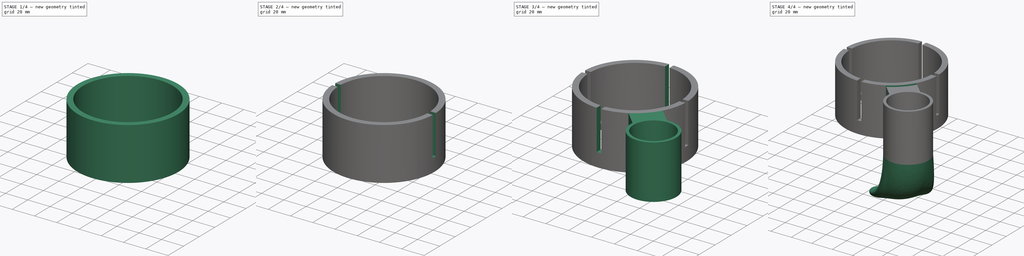
[diagram: build sequence overview — one tinted view per stage of 4, left to right]
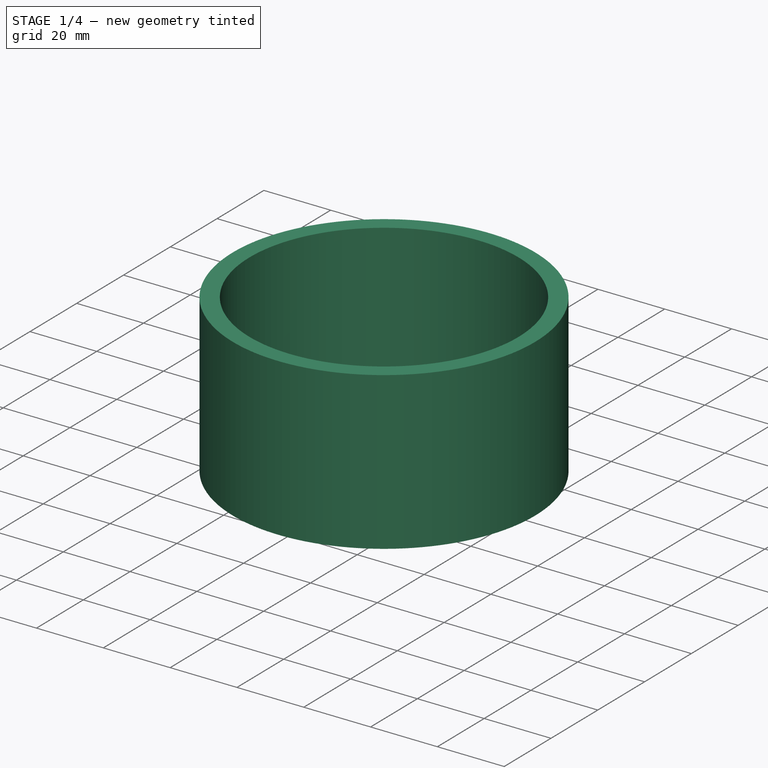
[diagram: stage 1 of 4 — iso view after this stage's code; geometry added in this stage tinted green]
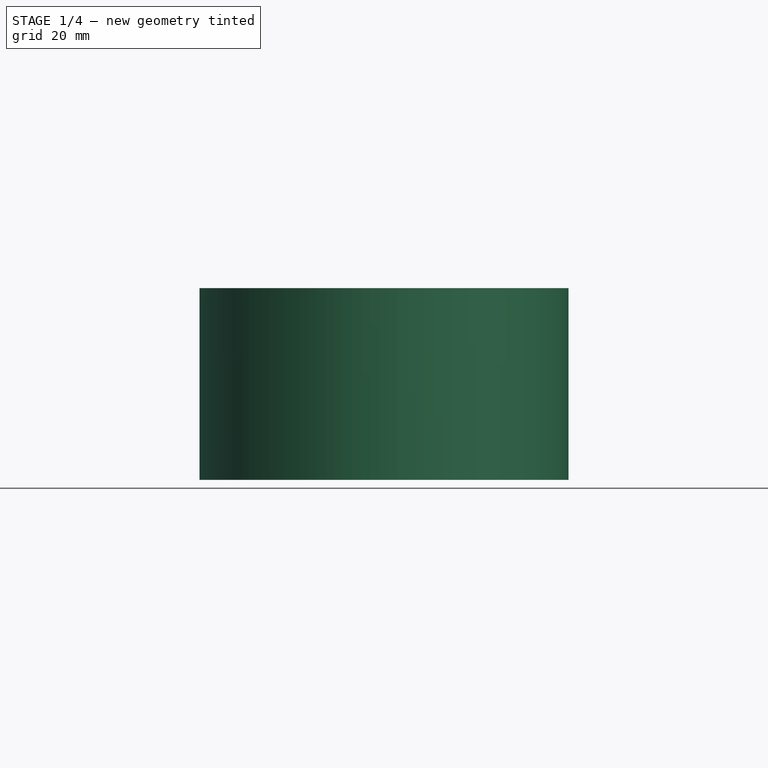
[diagram: stage 1 of 4 — front view after this stage's code; geometry added in this stage tinted green]
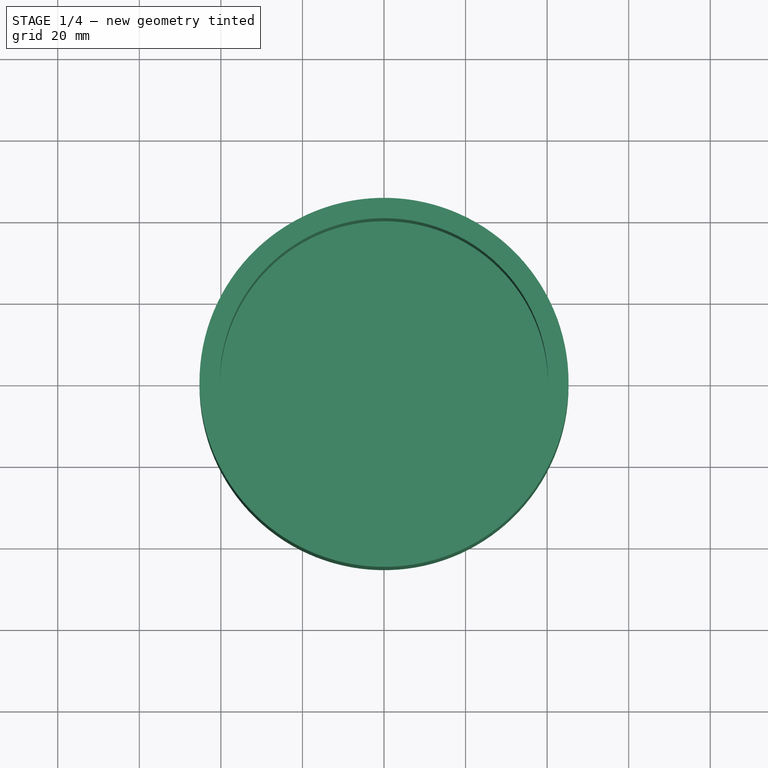
[diagram: stage 1 of 4 — top view after this stage's code; geometry added in this stage tinted green]
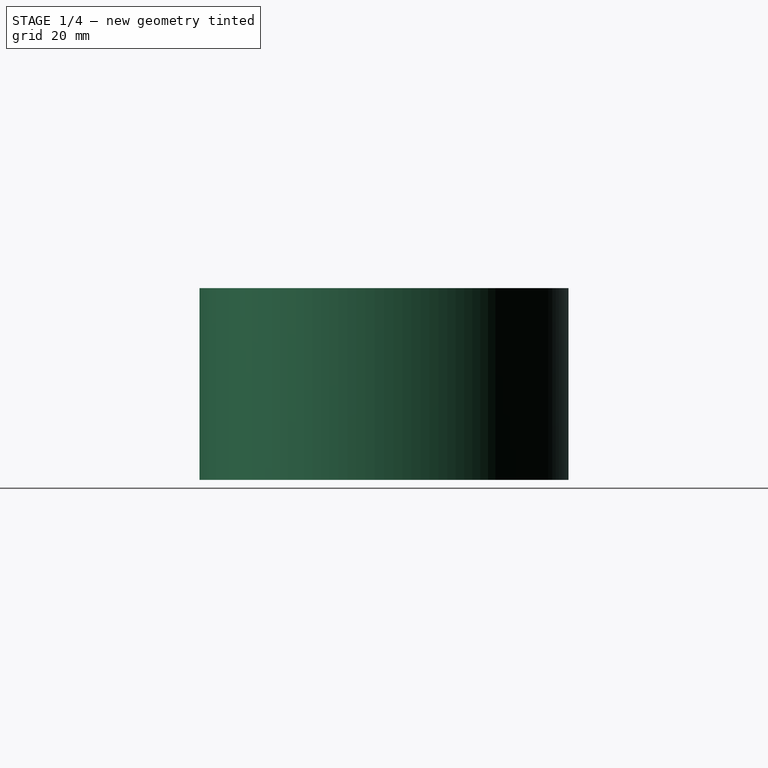
[diagram: stage 1 of 4 — right view after this stage's code; geometry added in this stage tinted green]
FCSTD DOCUMENT  (FreeCAD 0.20R29603 (Git))
Label: nozzle
License: All rights reserved
LicenseURL: http://en.wikipedia.org/wiki/All_rights_reserved
objects: Sketcher::SketchObject×12, PartDesign::Pocket×4, PartDesign::Pad×3, PartDesign::Plane×2, PartDesign::SubtractiveLoft×1, PartDesign::CoordinateSystem×1, PartDesign::Point×1, PartDesign::AdditivePipe×1, PartDesign::Body×1
note: 35 computed .brp shape members not serialized (recipe doc carries the construction recipe); baked Part::Feature solids carry a one-line shape summary decoded from their .brp

FEATURE [Sketcher::SketchObject] Sketch
  FullyConstrained = true
  MapMode = 5
  Support = -> [XY_Plane]
  sketch-geometry (2):
    g0: Circle CenterX=0 CenterY=0 CenterZ=0 NormalX=0 NormalY=0 NormalZ=1 AngleXU=0 Radius=40.25
    g1: Circle CenterX=0 CenterY=0 CenterZ=0 NormalX=0 NormalY=0 NormalZ=1 AngleXU=0 Radius=45.25
  constraints (4):
    c: Coincident(g0,g-1)
    c: Coincident(g1,g0)
    c: Diameter(g0) = 80.5
    c: Diameter(g1) = 90.5
FEATURE [PartDesign::Pad] Pad
  Direction = (0,0,1)
  Length = 42
  Length2 = 10
  Profile = -> Sketch
  ReferenceAxis = -> Sketch [N_Axis]
  Reversed = true
  Type = 0
FEATURE [Sketcher::SketchObject] Sketch001
  FullyConstrained = true
  MapMode = 5
  Placement = pos=(0,0,-42) rot=(1,0,0;3.14159rad)
  Support = -> [Pad]
  sketch-geometry (1):
    g0: Circle CenterX=0 CenterY=0 CenterZ=0 NormalX=0 NormalY=0 NormalZ=1 AngleXU=0 Radius=45.25
  constraints (2):
    c: Coincident(g0,g-1)
    c: Diameter(g0) = 90.5
FEATURE [PartDesign::Pad] Pad001
  BaseFeature = -> Pad
  Direction = (0,0,-1)
  Length = 5
  Length2 = 10
  Profile = -> Sketch001
  ReferenceAxis = -> Sketch001 [N_Axis]
  Type = 0
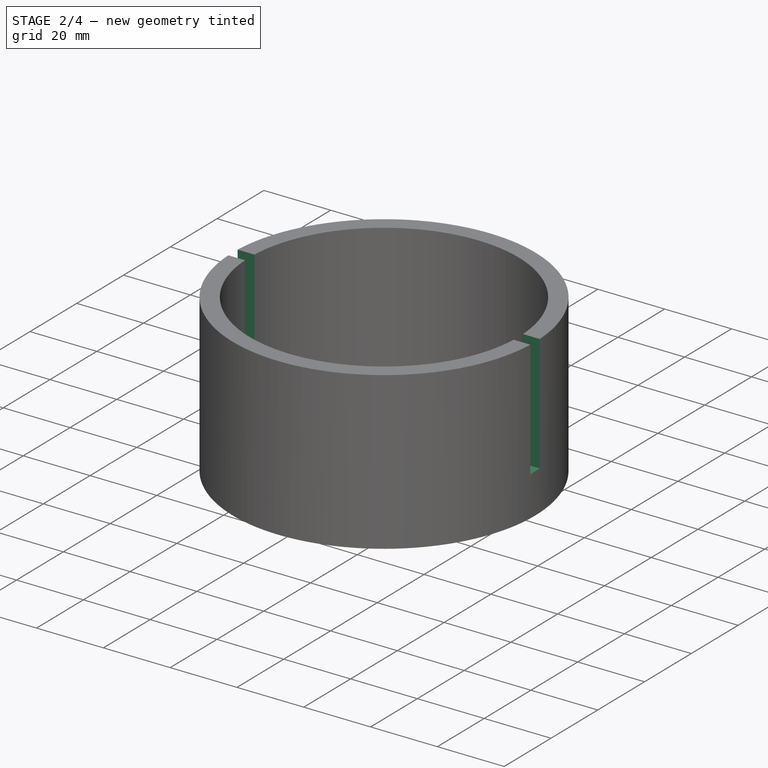
[diagram: stage 2 of 4 — iso view after this stage's code; geometry added in this stage tinted green]
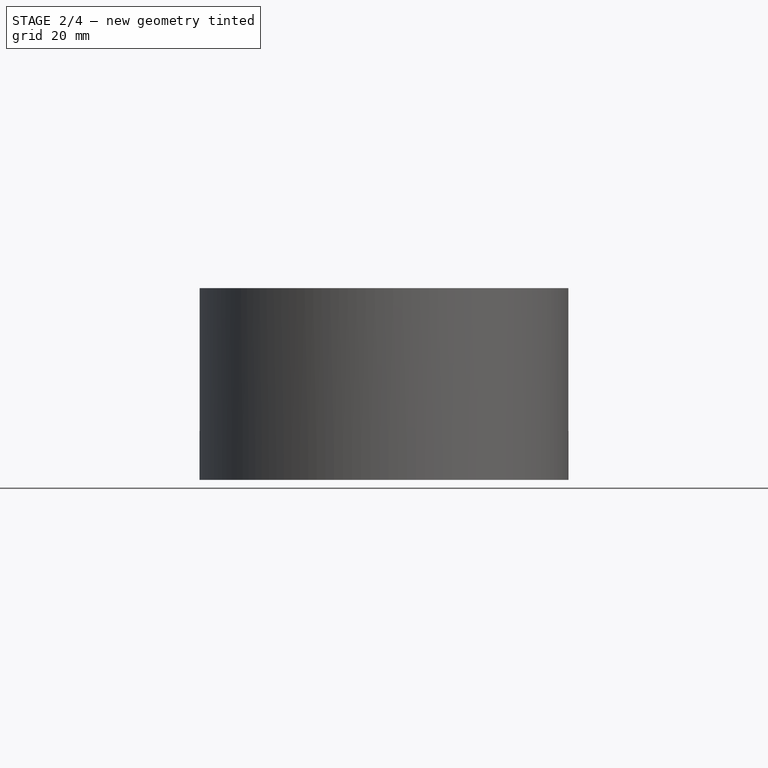
[diagram: stage 2 of 4 — front view after this stage's code; geometry added in this stage tinted green]
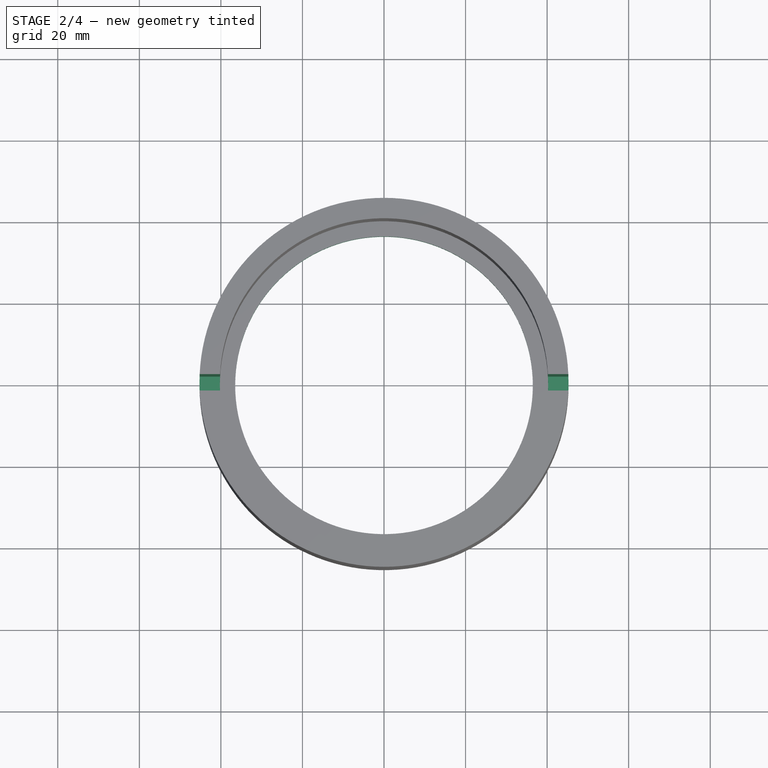
[diagram: stage 2 of 4 — top view after this stage's code; geometry added in this stage tinted green]
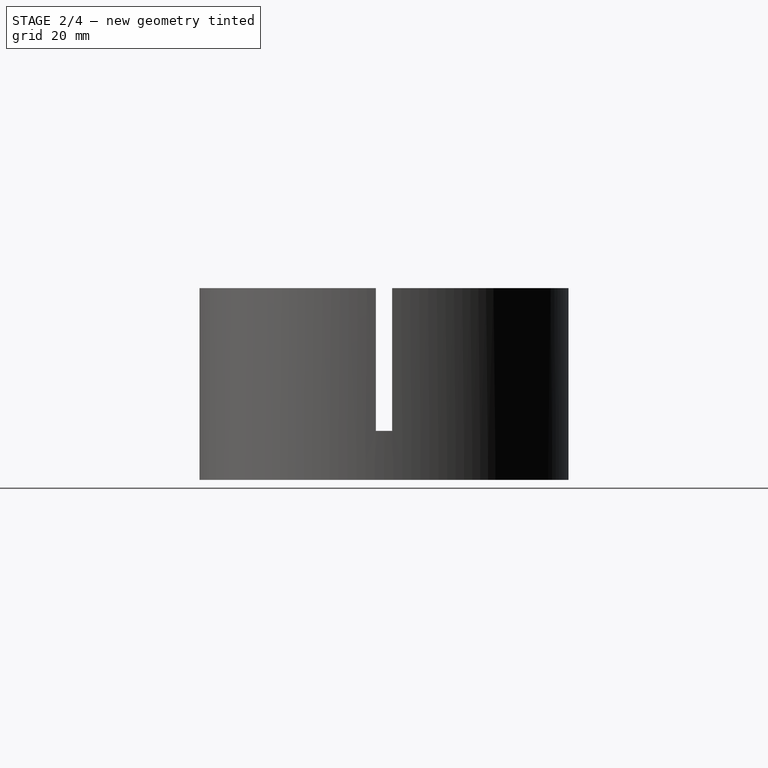
[diagram: stage 2 of 4 — right view after this stage's code; geometry added in this stage tinted green]
FEATURE [Sketcher::SketchObject] Sketch002
  FullyConstrained = true
  MapMode = 5
  Placement = pos=(0,0,-47) rot=(1,0,0;3.14159rad)
  Support = -> [Pad001]
  sketch-geometry (1):
    g0: Circle CenterX=0 CenterY=0 CenterZ=0 NormalX=0 NormalY=0 NormalZ=1 AngleXU=0 Radius=36.5
  constraints (2):
    c: Coincident(g0,g-1)
    c: Diameter(g0) = 73
FEATURE [PartDesign::Pocket] Pocket
  BaseFeature = -> Pad001
  Direction = (0,0,1)
  Length = 5
  Length2 = 5
  Profile = -> Sketch002
  ReferenceAxis = -> Sketch002 [N_Axis]
  Type = 0
FEATURE [Sketcher::SketchObject] Sketch003
  FullyConstrained = true
  MapMode = 5
  Placement = pos=(0,0,0) rot=(0.57735,0.57735,0.57735;2.0944rad)
  Support = -> [YZ_Plane]
  sketch-geometry (4):
    g0: LineSegment StartX=-2 StartY=0 StartZ=0 EndX=2 EndY=0 EndZ=0
    g1: LineSegment StartX=2 StartY=0 StartZ=0 EndX=2 EndY=-35 EndZ=0
    g2: LineSegment StartX=2 StartY=-35 StartZ=0 EndX=-2 EndY=-35 EndZ=0
    g3: LineSegment StartX=-2 StartY=-35 StartZ=0 EndX=-2 EndY=0 EndZ=0
  constraints (11):
    c: Coincident(g0,g1)
    c: Coincident(g1,g2)
    c: Coincident(g2,g3)
    c: Coincident(g3,g0)
    c: Horizontal(g0)
    c: Vertical(g1)
    c: Vertical(g3)
    c: PointOnObject(g0,g-1)
    c: Symmetric(g2,g1,g-2)
    c: DistanceX(g2,g2) = 4
    c: DistanceY(g1,g1) = 35
FEATURE [PartDesign::Pocket] Pocket001
  BaseFeature = -> Pocket
  Direction = (-1,2e-16,-3e-16)
  Length = 90.5
  Length2 = 5
  Midplane = true
  Profile = -> Sketch003
  ReferenceAxis = -> Sketch003 [N_Axis]
  Type = 0
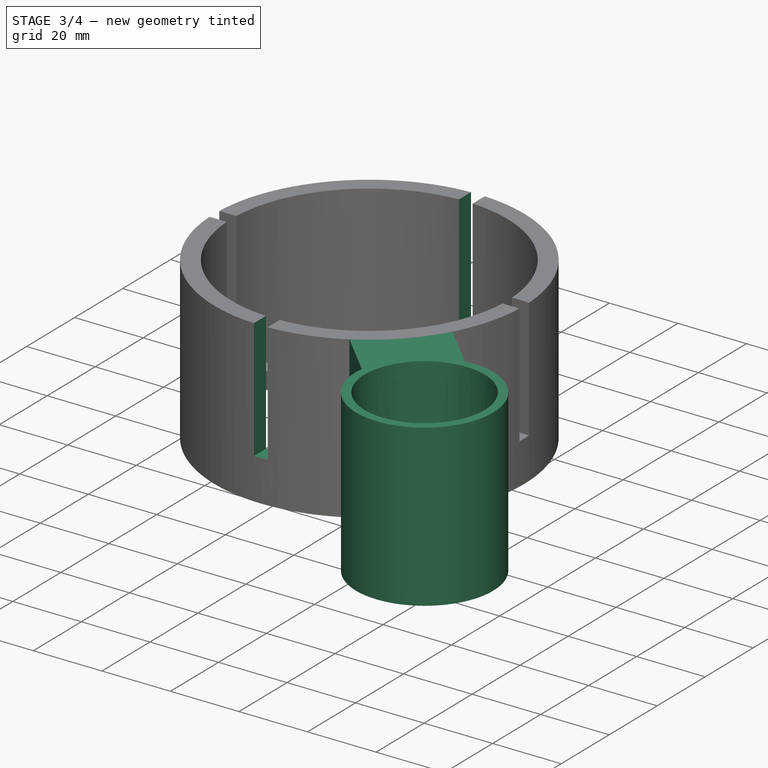
[diagram: stage 3 of 4 — iso view after this stage's code; geometry added in this stage tinted green]
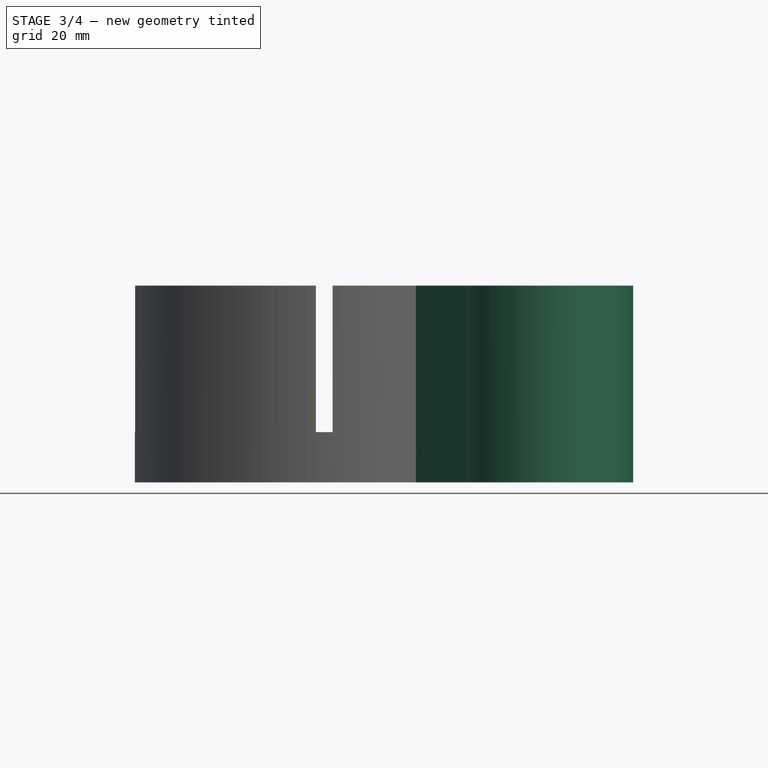
[diagram: stage 3 of 4 — front view after this stage's code; geometry added in this stage tinted green]
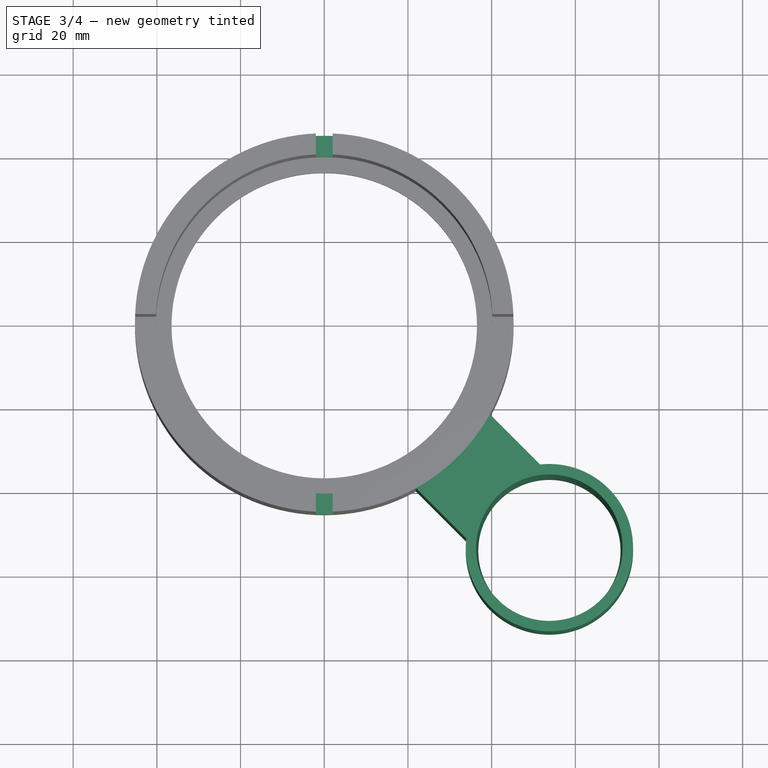
[diagram: stage 3 of 4 — top view after this stage's code; geometry added in this stage tinted green]
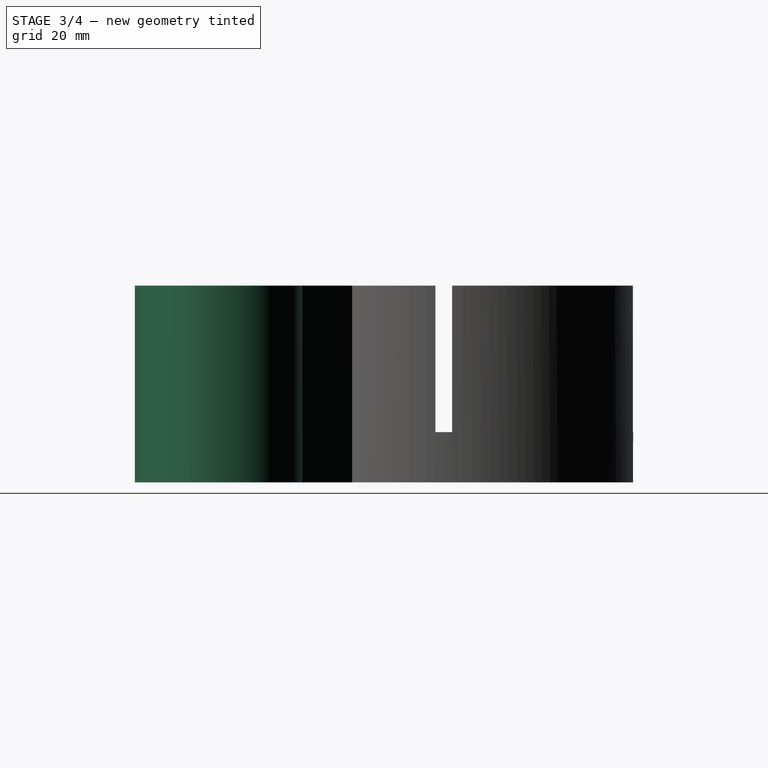
[diagram: stage 3 of 4 — right view after this stage's code; geometry added in this stage tinted green]
FEATURE [Sketcher::SketchObject] Sketch004
  FullyConstrained = true
  MapMode = 5
  Placement = pos=(0,0,0) rot=(1,0,0;1.5708rad)
  Support = -> [XZ_Plane]
  sketch-geometry (4):
    g0: LineSegment StartX=-2 StartY=0 StartZ=0 EndX=2 EndY=0 EndZ=0
    g1: LineSegment StartX=2 StartY=0 StartZ=0 EndX=2 EndY=-35 EndZ=0
    g2: LineSegment StartX=2 StartY=-35 StartZ=0 EndX=-2 EndY=-35 EndZ=0
    g3: LineSegment StartX=-2 StartY=-35 StartZ=0 EndX=-2 EndY=0 EndZ=0
  constraints (11):
    c: Coincident(g0,g1)
    c: Coincident(g1,g2)
    c: Coincident(g2,g3)
    c: Coincident(g3,g0)
    c: Horizontal(g0)
    c: Vertical(g1)
    c: Vertical(g3)
    c: PointOnObject(g0,g-1)
    c: DistanceX(g2,g2) = 4
    c: Symmetric(g1,g2,g-2)
    c: DistanceY(g1,g1) = 35
FEATURE [PartDesign::Pocket] Pocket002
  BaseFeature = -> Pocket001
  Direction = (0,1,-2e-16)
  Length = 90.5
  Length2 = 5
  Midplane = true
  Profile = -> Sketch004
  ReferenceAxis = -> Sketch004 [N_Axis]
  Type = 0
FEATURE [Sketcher::SketchObject] Sketch005
  ExternalGeometry = -> [Pocket002]
  FullyConstrained = true
  MapMode = 5
  Support = -> [Pocket002]
  sketch-geometry (5):
    g0: LineSegment StartX=39.5904 StartY=-21.9127 StartZ=0 EndX=51.6112 EndY=-33.9335 EndZ=0
    g1: LineSegment StartX=21.9127 StartY=-39.5904 StartZ=0 EndX=33.9335 EndY=-51.6112 EndZ=0
    g2: LineSegment StartX=0 StartY=0 StartZ=0 EndX=141.421 EndY=-141.421 EndZ=0
    g3: ArcOfCircle CenterX=53.812 CenterY=-53.812 CenterZ=0 NormalX=0 NormalY=0 NormalZ=1 AngleXU=0 Radius=20 StartAngle=3.03133 EndAngle=7.96425
    g4: ArcOfCircle CenterX=53.812 CenterY=-53.812 CenterZ=0 NormalX=0 NormalY=0 NormalZ=1 AngleXU=0 Radius=34.926 StartAngle=1.99018 EndAngle=2.72221
  constraints (15):
    c: PointOnObject(g0,g-3)
    c: Angle(g-1,g0) = 2.35619
    c: Parallel(g1,g0)
    c: Equal(g1,g0)
    c: Coincident(g2,g-3)
    c: Distance(g2) = 200
    c: Symmetric(g1,g0,g2)
    c: Distance(g1,g0) = 25
    c: Distance(g0) = 17
    c: Coincident(g3,g0)
    c: Coincident(g3,g1)
    c: Coincident(g4,g3)
    c: Coincident(g4,g1)
    c: Coincident(g4,g0)
    c: Diameter(g3) = 40
FEATURE [PartDesign::Pad] Pad002
  BaseFeature = -> Pocket002
  Direction = (0,0,1)
  Length = 47
  Length2 = 10
  Profile = -> Sketch005
  ReferenceAxis = -> Sketch005 [N_Axis]
  Reversed = true
  Type = 0
FEATURE [Sketcher::SketchObject] Sketch006
  ExternalGeometry = -> [Pad002]
  FullyConstrained = true
  MapMode = 5
  Support = -> [Pad002]
  sketch-geometry (1):
    g0: Circle CenterX=53.812 CenterY=-53.812 CenterZ=0 NormalX=0 NormalY=0 NormalZ=1 AngleXU=0 Radius=17.5
  constraints (2):
    c: Coincident(g0,g-3)
    c: Diameter(g0) = 35
FEATURE [Sketcher::SketchObject] Sketch007
  ExternalGeometry = -> [Pad002]
  FullyConstrained = true
  MapMode = 5
  Placement = pos=(0,0,-47) rot=(1,0,0;3.14159rad)
  Support = -> [Pad002]
  sketch-geometry (1):
    g0: Circle CenterX=53.812 CenterY=53.812 CenterZ=0 NormalX=0 NormalY=0 NormalZ=1 AngleXU=0 Radius=17
  constraints (2):
    c: Coincident(g0,g-3)
    c: Diameter(g0) = 34
FEATURE [PartDesign::SubtractiveLoft] SubtractiveLoft
  BaseFeature = -> Pad002
  Closed = false
  Profile = -> Sketch006
  Ruled = false
  Sections = -> [Sketch007]
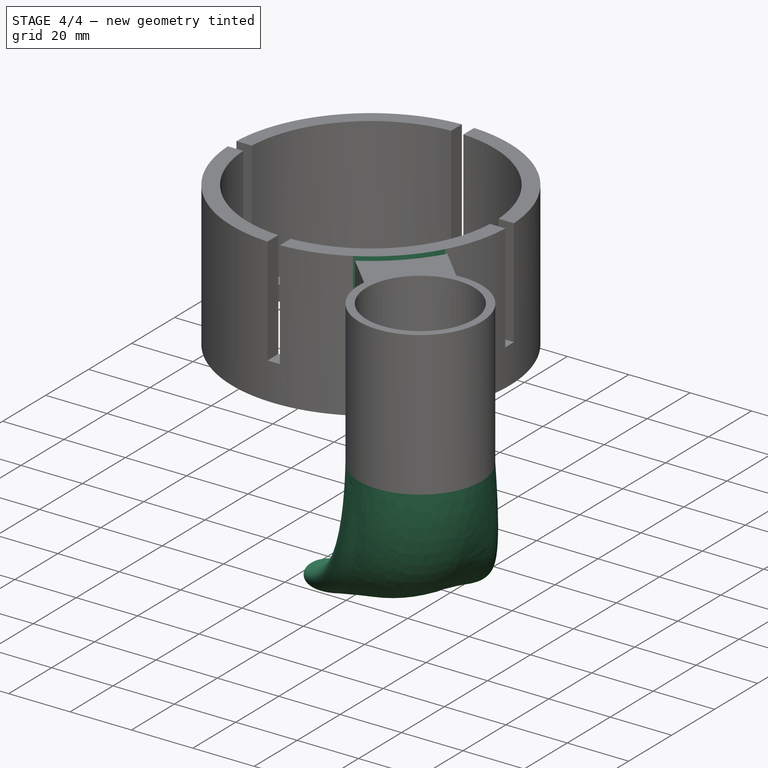
[diagram: stage 4 of 4 — iso view after this stage's code; geometry added in this stage tinted green]
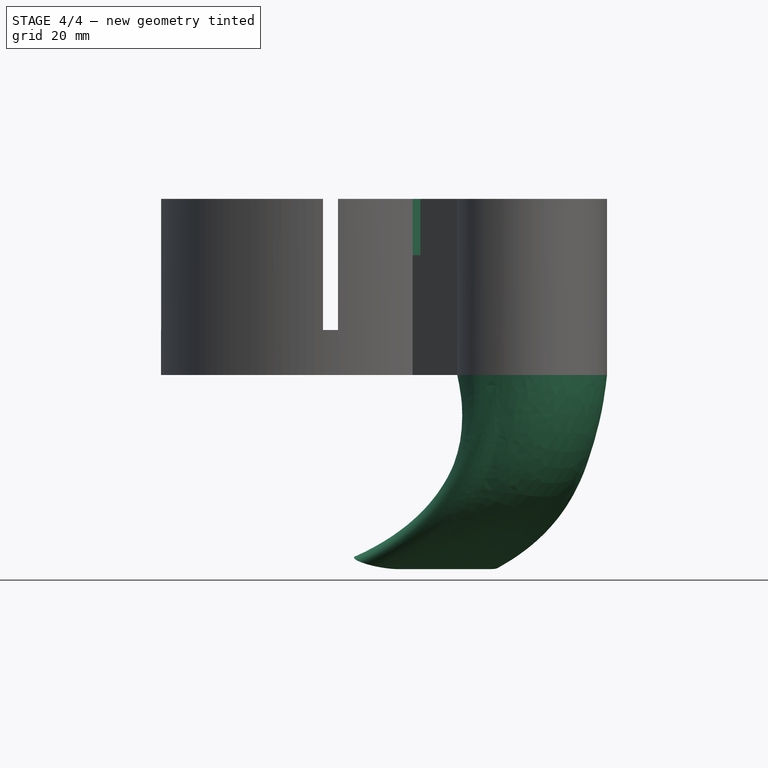
[diagram: stage 4 of 4 — front view after this stage's code; geometry added in this stage tinted green]
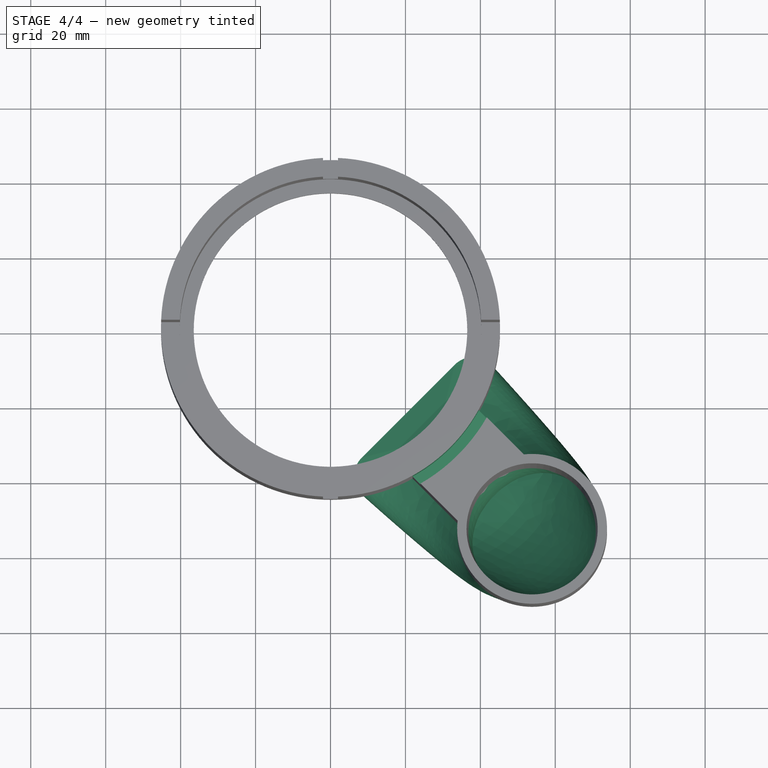
[diagram: stage 4 of 4 — top view after this stage's code; geometry added in this stage tinted green]
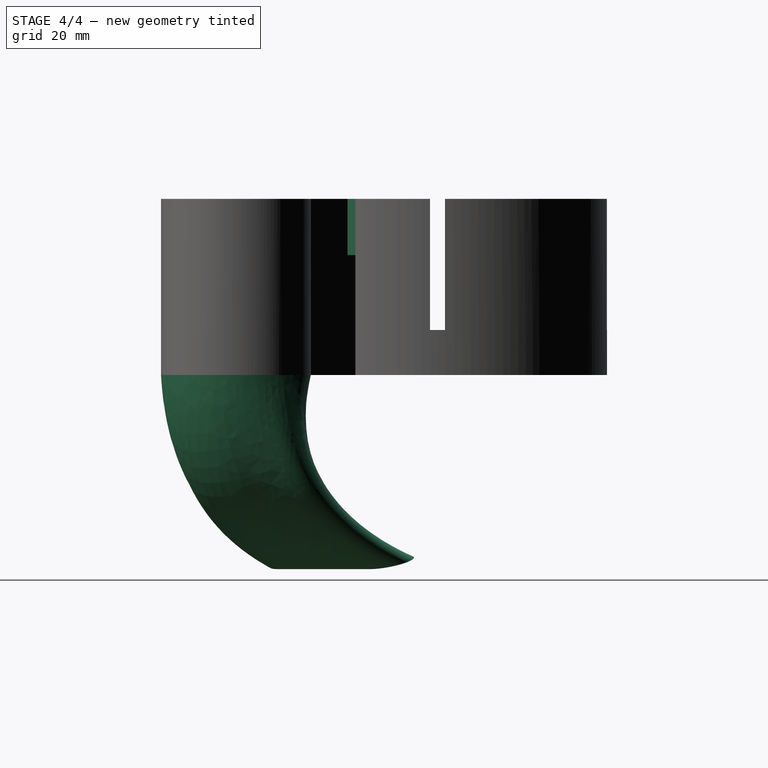
[diagram: stage 4 of 4 — right view after this stage's code; geometry added in this stage tinted green]
FEATURE [Sketcher::SketchObject] Sketch008
  ExternalGeometry = -> [SubtractiveLoft]
  FullyConstrained = true
  MapMode = 5
  Support = -> [SubtractiveLoft]
  sketch-geometry (4):
    g0: ArcOfCircle CenterX=0 CenterY=-7.6e-15 CenterZ=0 NormalX=0 NormalY=0 NormalZ=1 AngleXU=0 Radius=45.25 StartAngle=5.2179 EndAngle=5.77767
    g1: ArcOfCircle CenterX=0 CenterY=-7.6e-15 CenterZ=0 NormalX=0 NormalY=0 NormalZ=1 AngleXU=0 Radius=48.1404 StartAngle=5.23512 EndAngle=5.76045
    g2: LineSegment StartX=41.7117 StartY=-24.034 StartZ=0 EndX=39.5904 EndY=-21.9127 EndZ=0
    g3: LineSegment StartX=24.034 StartY=-41.7117 StartZ=0 EndX=21.9127 EndY=-39.5904 EndZ=0
  constraints (11):
    c: PointOnObject(g0,g-2)
    c: Coincident(g0,g-3)
    c: Coincident(g0,g-3)
    c: Coincident(g1,g0)
    c: PointOnObject(g1,g-5)
    c: PointOnObject(g1,g-4)
    c: Coincident(g2,g1)
    c: Coincident(g2,g0)
    c: Coincident(g3,g1)
    c: Coincident(g3,g0)
    c: Distance(g2) = 3
FEATURE [PartDesign::Pocket] Pocket003
  BaseFeature = -> SubtractiveLoft
  Direction = (0,0,-1)
  Length = 15
  Length2 = 5
  Profile = -> Sketch008
  ReferenceAxis = -> Sketch008 [N_Axis]
  Type = 0
FEATURE [PartDesign::CoordinateSystem] LCS_1
  AttacherType = Attacher::AttachEngine3D
  MapMode = 11
  Placement = pos=(0,0,-42) rot=(0.707107,-0.707107,0;3.14159rad)
  Support = -> [Pocket003]
FEATURE [Sketcher::SketchObject] Sketch009
  ExternalGeometry = -> [Pocket003]
  FullyConstrained = true
  MapMode = 5
  Placement = pos=(0,0,-47) rot=(1,0,0;3.14159rad)
  Support = -> [Pocket003]
  sketch-geometry (2):
    g0: Circle CenterX=53.812 CenterY=53.812 CenterZ=0 NormalX=0 NormalY=0 NormalZ=1 AngleXU=0 Radius=17
    g1: Circle CenterX=53.812 CenterY=53.812 CenterZ=0 NormalX=0 NormalY=0 NormalZ=1 AngleXU=0 Radius=20
  constraints (4):
    c: Coincident(g0,g-3)
    c: Diameter(g0) = 34
    c: Coincident(g1,g0)
    c: Diameter(g1) = 40
FEATURE [PartDesign::Plane] DatumPlane
  AttachmentOffset = pos=(0,0,0) rot=(-0.357407,0.862856,0.357407;1.71777rad)
  Length = 152.689
  MapMode = 11
  Placement = pos=(53.812,-53.812,-47) rot=(0.357407,-0.862856,0.357407;1.71777rad)
  ResizeMode = 0
  Support = -> [Pocket003]
  Width = 197.255
FEATURE [Sketcher::SketchObject] Sketch010
  FullyConstrained = true
  MapMode = 5
  Placement = pos=(53.812,-53.812,-47) rot=(0.357407,-0.862856,0.357407;1.71777rad)
  Support = -> [DatumPlane]
  sketch-geometry (6):
    g0: Circle CenterX=0 CenterY=0 CenterZ=0 NormalX=0 NormalY=0 NormalZ=1 AngleXU=0 Radius=1
    g1: Circle CenterX=-35 CenterY=-3 CenterZ=0 NormalX=0 NormalY=0 NormalZ=1 AngleXU=0 Radius=1
    g2: Circle CenterX=-50 CenterY=40 CenterZ=0 NormalX=0 NormalY=0 NormalZ=1 AngleXU=0 Radius=1
    g3: BSplineCurve PolesCount=3 KnotsCount=2 Degree=2 IsPeriodic=0
    g4: GeomPoint X=0 Y=0 Z=0
    g5: GeomPoint X=-50 Y=40 Z=0
  constraints (13):
    c: Weight(g0) = 1
    c: Coincident(g3,g-1)
    c: Equal(g0,g1)
    c: Equal(g0,g2)
    c: InternalAlignment(g0,g3)
    c: InternalAlignment(g1,g3)
    c: InternalAlignment(g2,g3)
    c: InternalAlignment(g4,g3)
    c: InternalAlignment(g5,g3)
    c: DistanceX(g3,g3) = 50
    c: DistanceY(g3,g3) = 40
    c: DistanceY(g1,g3) = 3
    c: DistanceX(g1,g3) = 35
FEATURE [PartDesign::Point] DatumPoint
  AttacherType = Attacher::AttachEnginePoint
  MapMode = 37
  Placement = pos=(25.5278,-25.5278,-97) rot=(0,0,1;0rad)
  Support = -> [Sketch010]
FEATURE [PartDesign::Plane] DatumPlane002
  AttachmentOffset = pos=(0,0,0) rot=(0.300549,0.124491,0.945607;0.825727rad)
  Length = 204.589
  MapMode = 2
  Placement = pos=(25.5278,-25.5278,-97) rot=(0.300549,0.124491,0.945607;0.825727rad)
  ResizeMode = 0
  Support = -> [DatumPoint]
  Width = 230.897
FEATURE [Sketcher::SketchObject] Sketch012
  FullyConstrained = true
  MapMode = 5
  Placement = pos=(25.5278,-25.5278,-97) rot=(0.300549,0.124491,0.945607;0.825727rad)
  Support = -> [DatumPlane002]
  sketch-geometry (8):
    g0: ArcOfCircle CenterX=-17.5 CenterY=0 CenterZ=0 NormalX=0 NormalY=0 NormalZ=1 AngleXU=0 Radius=5 StartAngle=1.5708 EndAngle=4.71239
    g1: ArcOfCircle CenterX=17.5 CenterY=0 CenterZ=0 NormalX=0 NormalY=0 NormalZ=1 AngleXU=0 Radius=5 StartAngle=4.71239 EndAngle=7.85398
    g2: LineSegment StartX=-17.5 StartY=-5 StartZ=0 EndX=17.5 EndY=-5 EndZ=0
    g3: LineSegment StartX=17.5 StartY=5 StartZ=0 EndX=-17.5 EndY=5 EndZ=0
    g4: ArcOfCircle CenterX=-17.5 CenterY=0 CenterZ=0 NormalX=0 NormalY=0 NormalZ=1 AngleXU=0 Radius=7 StartAngle=1.5708 EndAngle=4.71239
    g5: ArcOfCircle CenterX=17.5 CenterY=0 CenterZ=0 NormalX=0 NormalY=0 NormalZ=1 AngleXU=0 Radius=7 StartAngle=4.71239 EndAngle=7.85398
    g6: LineSegment StartX=-17.5 StartY=-7 StartZ=0 EndX=17.5 EndY=-7 EndZ=0
    g7: LineSegment StartX=17.5 StartY=7 StartZ=0 EndX=-17.5 EndY=7 EndZ=0
  constraints (17):
    c: Tangent(g0,g2) = -1.5708
    c: Tangent(g2,g1) = -1.5708
    c: Tangent(g1,g3) = -1.5708
    c: Tangent(g3,g0) = -1.5708
    c: Equal(g0,g1)
    c: PointOnObject(g0,g-1)
    c: Tangent(g4,g6) = -1.5708
    c: Tangent(g6,g5) = -1.5708
    c: Tangent(g5,g7) = -1.5708
    c: Tangent(g7,g4) = -1.5708
    c: Equal(g4,g5)
    c: DistanceX(g0,g1) = 35
    c: DistanceY(g1,g1) = 10
    c: Symmetric(g1,g0,g-1)
    c: Symmetric(g5,g4,g-1)
    c: DistanceY(g5,g5) = 14
    c: Coincident(g5,g1)
FEATURE [PartDesign::AdditivePipe] AdditivePipe
  AuxilleryCurvelinear = true
  AuxillerySpineTangent = false
  BaseFeature = -> Pocket003
  Binormal = (0,0,0)
  Mode = 0
  Profile = -> Sketch009
  Sections = -> [Sketch012]
  Spine = -> Sketch010
  SpineTangent = false
  Transformation = 1
  Transition = 0
FEATURE [PartDesign::Body] Body
  Group = -> [Sketch,Pad,Sketch001,Pad001,Sketch002,Pocket,Sketch003,Pocket001,Sketch004,Pocket002,Sketch005,Pad002,Sketch006,Sketch007,SubtractiveLoft,Sketch008,Pocket003,LCS_1,Sketch009,DatumPlane,Sketch010,DatumPoint,DatumPlane002,Sketch012,AdditivePipe]
  Origin = -> Origin
  Tip = -> AdditivePipe
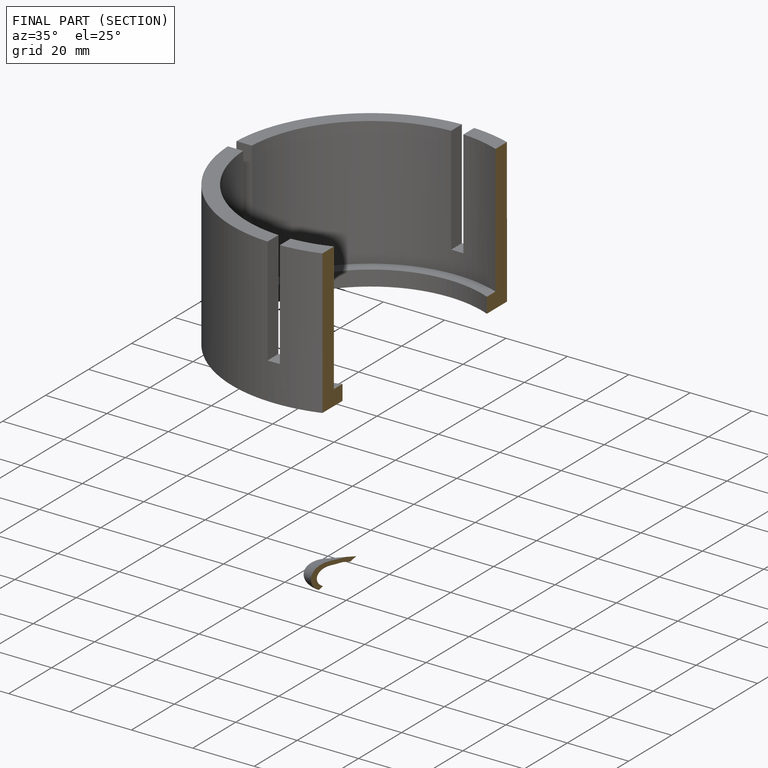
[diagram: finished part — half-section view (interior)]
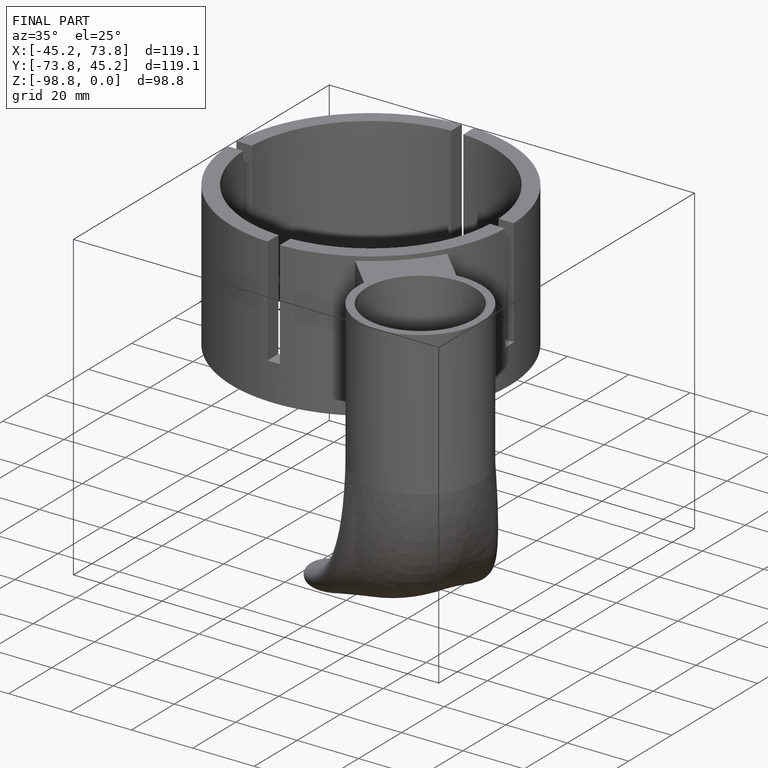
[diagram: finished part — iso view with bounding-box wireframe]
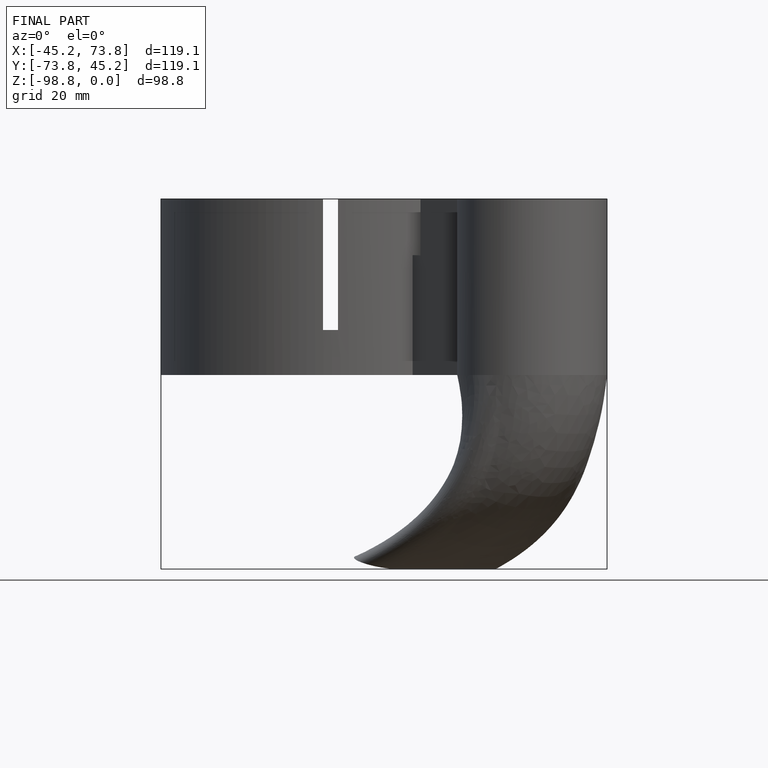
[diagram: finished part — front view with bounding-box wireframe]
